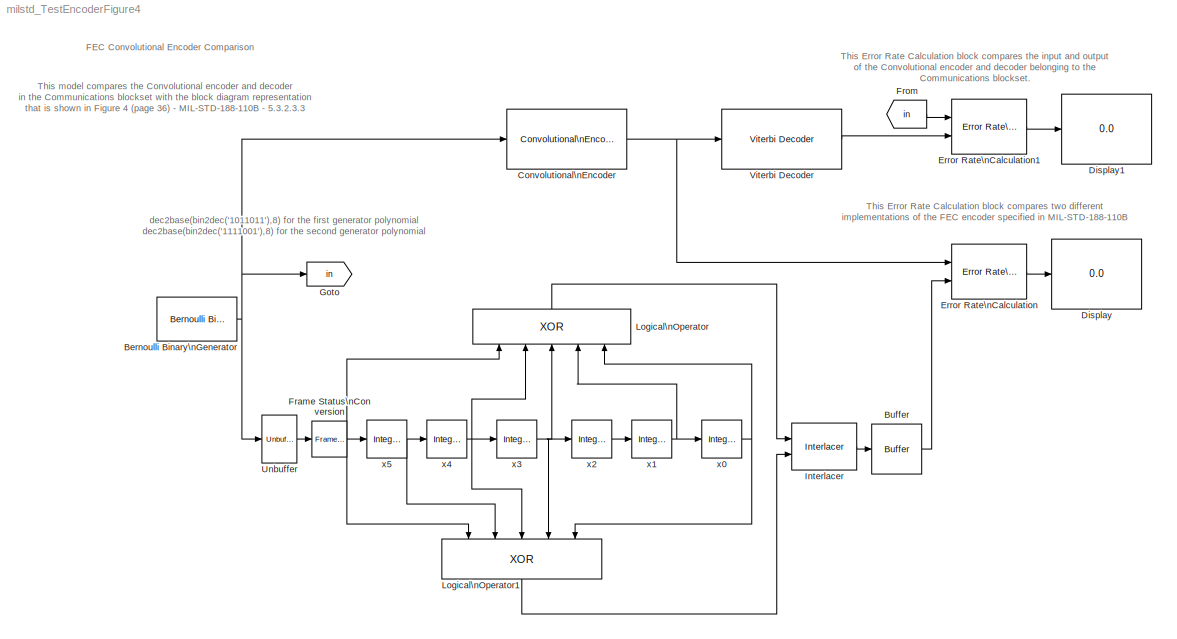
MODEL milstd_TestEncoderFigure4
KIND model
BLOCK [Reference] Bernoulli Binary\nGenerator  REF=commrandsrc2/Bernoulli Binary\nGenerator
  P = 0
  Ports = [0, 1]
  ShowPortLabels = on
  SourceBlock = commrandsrc2/Bernoulli Binary\nGenerator
  SourceType = Bernoulli Binary Generator
  Ts = 1/100
  frameBased = on
  orient = off
  sampPerFrame = 100
  seed = 61
BLOCK [Reference] Buffer  REF=dspbuff3/Buffer
  N = 100*2
  Ports = [1, 1]
  SourceBlock = dspbuff3/Buffer
  SourceType = Buffer
  V = 0
  ic = 0
BLOCK [Reference] Convolutional\nEncoder  REF=commcnvcod2/Convolutional\nEncoder
  Ports = [1, 1]
  SourceBlock = commcnvcod2/Convolutional\nEncoder
  SourceType = Convolutional Encoder
  reset = None
  trellis = poly2trellis(7, [133 171])
BLOCK [Display] Display
  Decimation = 1
  Ports = [1]
BLOCK [Display] Display1
  Decimation = 1
  Ports = [1]
BLOCK [Reference] Error Rate\nCalculation  REF=commsink2/Error Rate\nCalculation
  N = 200
  PMode = Port
  Ports = [2, 1]
  RsMode2 = off
  SourceBlock = commsink2/Error Rate\nCalculation
  SourceType = Error Rate Calculation
  WsName = ErrorVec
  cp_mode = Entire frame
  maxBits = 1e6
  numErr = 100
  st_delay = 0
  stop = off
  subframe = []
BLOCK [Reference] Error Rate\nCalculation1  REF=commsink2/Error Rate\nCalculation
  N = 34
  PMode = Port
  Ports = [2, 1]
  RsMode2 = off
  SourceBlock = commsink2/Error Rate\nCalculation
  SourceType = Error Rate Calculation
  WsName = ErrorVec
  cp_mode = Entire frame
  maxBits = 1e6
  numErr = 100
  st_delay = 0
  stop = off
  subframe = []
BLOCK [Reference] Frame Status\nConversion  REF=dspsigattribs/Frame Status\nConversion
  Ports = [1, 1]
  ShowPortLabels = off
  SourceBlock = dspsigattribs/Frame Status\nConversion
  SourceType = Frame Status Conversion
  growRefPort = off
  outframe = Frame-based
BLOCK [From] From
  CloseFcn = tagdialog Close
  DialogController = Simulink.DDGSource
  GotoTag = in
BLOCK [Goto] Goto
  DialogController = Simulink.DDGSource
  GotoTag = in
  TagVisibility = local
BLOCK [Reference] Interlacer  REF=commsequence2/Interlacer
  Ports = [2, 1]
  SourceBlock = commsequence2/Interlacer
  SourceType = Interlacer
BLOCK [Logic] Logical\nOperator
  AllPortsSameDT = off
  Inputs = 5
  Operator = XOR
  Ports = [5, 1]
BLOCK [Logic] Logical\nOperator1
  AllPortsSameDT = off
  Inputs = 5
  Operator = XOR
  Ports = [5, 1]
BLOCK [Reference] Unbuffer  REF=dspbuff3/Unbuffer
  Ports = [1, 1]
  SourceBlock = dspbuff3/Unbuffer
  SourceType = Unbuffer
  ic = 0
BLOCK [Reference] Viterbi Decoder  REF=commcnvcod2/Viterbi Decoder
  Ports = [1, 1]
  SourceBlock = commcnvcod2/Viterbi Decoder
  SourceType = Viterbi Decoder
  dectype = Hard Decision
  nsdecb = 4
  opmode = Continuous
  reset = off
  tbdepth = 34
  trellis = poly2trellis(7, [133 171])
BLOCK [Reference] x0  REF=dspobslib/Integer Delay
  Ports = [1, 1]
  SourceBlock = dspobslib/Integer Delay
  SourceType = Integer Delay
  delay = 1
  ic = 0
  reset_popup = None
BLOCK [Reference] x1  REF=dspobslib/Integer Delay
  Ports = [1, 1]
  SourceBlock = dspobslib/Integer Delay
  SourceType = Integer Delay
  delay = 1
  ic = 0
  reset_popup = None
BLOCK [Reference] x2  REF=dspobslib/Integer Delay
  Ports = [1, 1]
  SourceBlock = dspobslib/Integer Delay
  SourceType = Integer Delay
  delay = 1
  ic = 0
  reset_popup = None
BLOCK [Reference] x3  REF=dspobslib/Integer Delay
  Ports = [1, 1]
  SourceBlock = dspobslib/Integer Delay
  SourceType = Integer Delay
  delay = 1
  ic = 0
  reset_popup = None
BLOCK [Reference] x4  REF=dspobslib/Integer Delay
  Ports = [1, 1]
  SourceBlock = dspobslib/Integer Delay
  SourceType = Integer Delay
  delay = 1
  ic = 0
  reset_popup = None
BLOCK [Reference] x5  REF=dspobslib/Integer Delay
  Ports = [1, 1]
  SourceBlock = dspobslib/Integer Delay
  SourceType = Integer Delay
  delay = 1
  ic = 0
  reset_popup = None
ANNOTATION (root): FEC Convolutional Encoder Comparison
ANNOTATION (root): This Error Rate Calculation block compares the input and output\nof the Convolutional encoder and decoder belonging to the \nCommunications blockset.
ANNOTATION (root): This Error Rate Calculation block compares two different\nimplementations of the FEC encoder specified in MIL-STD-188-110B
ANNOTATION (root): This model compares the Convolutional encoder and decoder\nin the Communications blockset with the block diagram representation\nthat is shown in Figure 4 (page 36) - MIL-STD-188-110B - 5.3.2.3.3
ANNOTATION (root): dec2base(bin2dec('1011011'),8) for the first generator polynomial\ndec2base(bin2dec('1111001'),8) for the second generator polynomial
NET Bernoulli Binary\nGenerator:1 -> Convolutional\nEncoder:1, Goto:1, Unbuffer:1
LINE Buffer:1 -> Error Rate\nCalculation:2
NET Convolutional\nEncoder:1 -> Error Rate\nCalculation:1, Viterbi Decoder:1
LINE Error Rate\nCalculation1:1 -> Display1:1
LINE Error Rate\nCalculation:1 -> Display:1
NET Frame Status\nConversion:1 -> Logical\nOperator1:1, Logical\nOperator:1, x5:1
LINE From:1 -> Error Rate\nCalculation1:1
LINE Interlacer:1 -> Buffer:1
LINE Logical\nOperator1:1 -> Interlacer:2
LINE Logical\nOperator:1 -> Interlacer:1
LINE Unbuffer:1 -> Frame Status\nConversion:1
LINE Viterbi Decoder:1 -> Error Rate\nCalculation1:2
NET x0:1 -> Logical\nOperator1:5, Logical\nOperator:5
NET x1:1 -> Logical\nOperator:4, x0:1
LINE x2:1 -> x1:1
NET x3:1 -> Logical\nOperator1:4, Logical\nOperator:3, x2:1
NET x4:1 -> Logical\nOperator1:3, Logical\nOperator:2, x3:1
NET x5:1 -> Logical\nOperator1:2, x4:1
note: NET lines group one-source signal fan-out (src -> all destinations, sorted); 1:1 wires keep LINE
